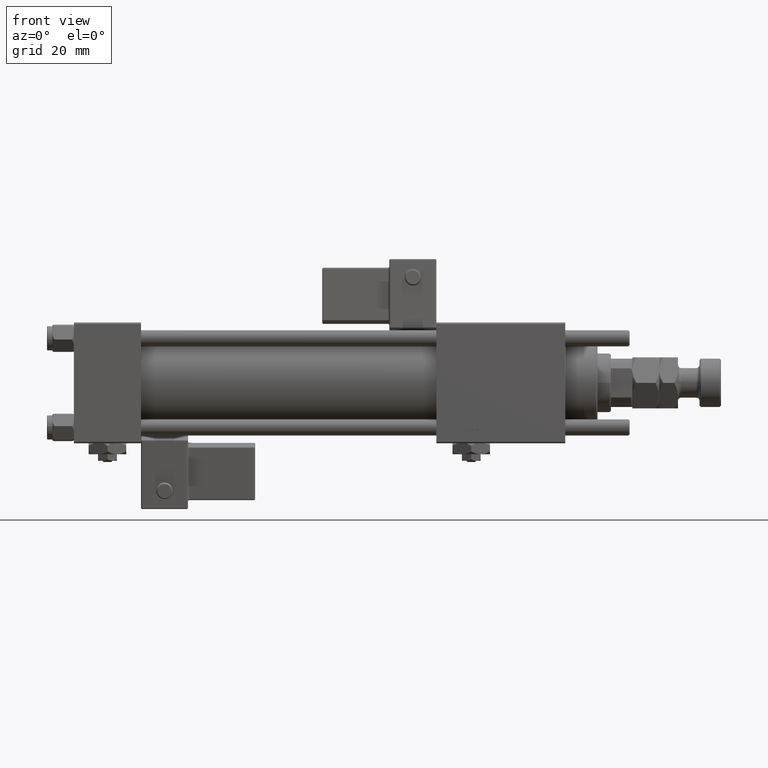
[diagram: clean part render]
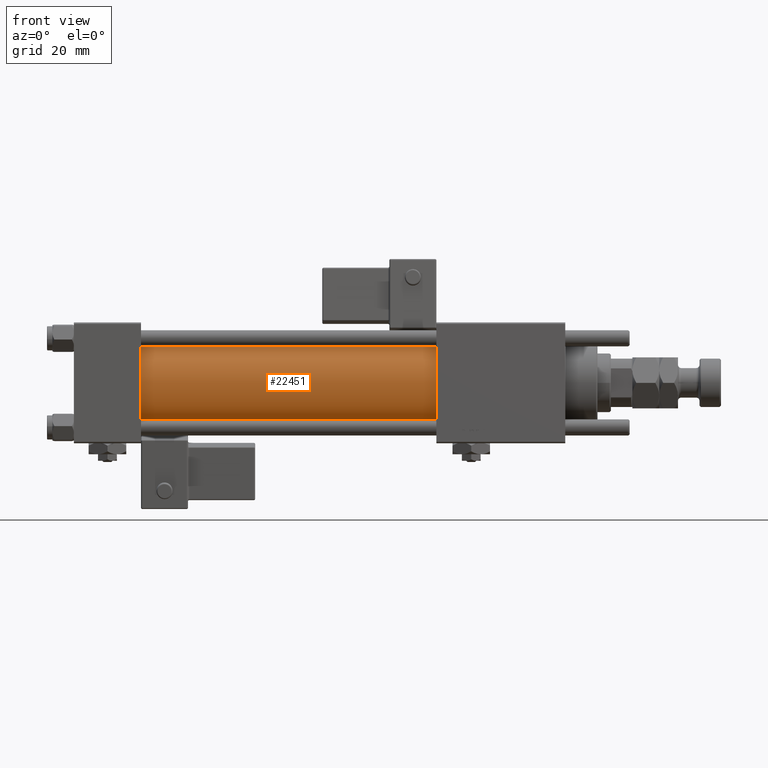
[diagram: same view with one face highlighted and labeled with its STEP entity id]
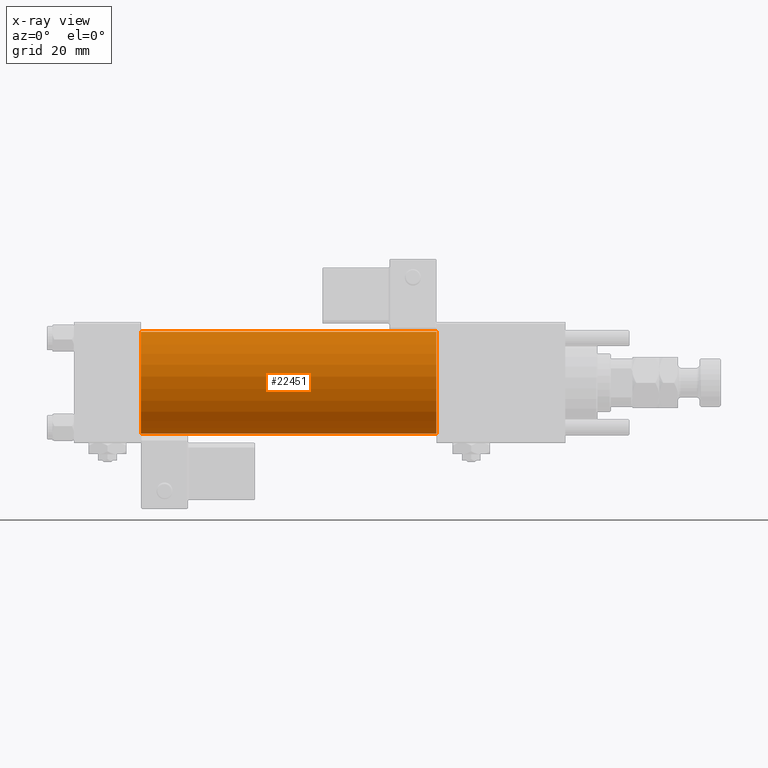
[diagram: x-ray of the same camera — body ghosted, the highlighted face saturated]
A machine part, front view. The second image highlights one B-rep face of the part: STEP entity #22451.
The next image is the same camera in x-ray: the body ghosted, the highlighted face saturated — about 0% of this face is hidden behind the body in this view.
In plain terms, the highlighted cylindrical surface (partial cylindrical patch) has radius 19 mm, axis along (-1, -0, -0).
Its self-contained STEP definition (entity closure, byte-faithful):
#97 = DIRECTION ( 'NONE',  ( 1.000000000000000000, 0.000000000000000000, 0.000000000000000000 ) ) ;
#469 = EDGE_CURVE ( 'NONE', #27811, #10264, #38032, .T. ) ;
#614 = DIRECTION ( 'NONE',  ( 1.000000000000000000, -0.000000000000000000, 0.000000000000000000 ) ) ;
#2034 = AXIS2_PLACEMENT_3D ( 'NONE', #30098, #614, #11365 ) ;
#3382 = DIRECTION ( 'NONE',  ( -1.000000000000000000, -0.000000000000000000, -0.000000000000000000 ) ) ;
#4564 = CIRCLE ( 'NONE', #9627, 19.00000000000000000 ) ;
#9627 = AXIS2_PLACEMENT_3D ( 'NONE', #28961, #97, #62626 ) ;
#10264 = VERTEX_POINT ( 'NONE', #56809 ) ;
#10929 = EDGE_CURVE ( 'NONE', #31914, #27811, #4564, .T. ) ;
#11201 = VECTOR ( 'NONE', #44781, 1000.000000000000000 ) ;
#11365 = DIRECTION ( 'NONE',  ( 0.000000000000000000, 0.000000000000000000, 1.000000000000000000 ) ) ;
#11974 = AXIS2_PLACEMENT_3D ( 'NONE', #36389, #3382, #55765 ) ;
#13137 = CIRCLE ( 'NONE', #2034, 19.00000000000000000 ) ;
#15390 = ORIENTED_EDGE ( 'NONE', *, *, #10929, .F. ) ;
#17383 = VECTOR ( 'NONE', #62484, 1000.000000000000000 ) ;
#22385 = ORIENTED_EDGE ( 'NONE', *, *, #26459, .T. ) ;
#22451 = ADVANCED_FACE ( 'NONE', ( #47160 ), #46849, .T. ) ;
#22574 = CARTESIAN_POINT ( 'NONE',  ( 24.99999999999999289, -2.602085213965210642E-15, 19.00000000000000000 ) ) ;
#24086 = CARTESIAN_POINT ( 'NONE',  ( 135.0000000000000000, -2.752562955852396712E-16, -19.00000000000000000 ) ) ;
#25201 = VERTEX_POINT ( 'NONE', #22574 ) ;
#26052 = CARTESIAN_POINT ( 'NONE',  ( 135.0000000000000000, -2.602085213965210642E-15, 19.00000000000000000 ) ) ;
#26459 = EDGE_CURVE ( 'NONE', #25201, #10264, #13137, .T. ) ;
#27613 = EDGE_CURVE ( 'NONE', #31914, #25201, #59086, .T. ) ;
#27811 = VERTEX_POINT ( 'NONE', #24086 ) ;
#28625 = CARTESIAN_POINT ( 'NONE',  ( 135.0000000000000000, -2.602085213965210642E-15, 19.00000000000000000 ) ) ;
#28961 = CARTESIAN_POINT ( 'NONE',  ( 135.0000000000000000, -2.602085213965210642E-15, 0.000000000000000000 ) ) ;
#30098 = CARTESIAN_POINT ( 'NONE',  ( 24.99999999999999289, -2.602085213965210642E-15, 0.000000000000000000 ) ) ;
#30748 = EDGE_LOOP ( 'NONE', ( #43325, #15390, #49018, #22385 ) ) ;
#31914 = VERTEX_POINT ( 'NONE', #28625 ) ;
#36389 = CARTESIAN_POINT ( 'NONE',  ( 135.0000000000000000, -2.602085213965210642E-15, 0.000000000000000000 ) ) ;
#38032 = LINE ( 'NONE', #38344, #17383 ) ;
#38344 = CARTESIAN_POINT ( 'NONE',  ( 135.0000000000000000, -2.752562955852396712E-16, -19.00000000000000000 ) ) ;
#43325 = ORIENTED_EDGE ( 'NONE', *, *, #469, .F. ) ;
#44781 = DIRECTION ( 'NONE',  ( -1.000000000000000000, -0.000000000000000000, -0.000000000000000000 ) ) ;
#46849 = CYLINDRICAL_SURFACE ( 'NONE', #11974, 19.00000000000000000 ) ;
#47160 = FACE_OUTER_BOUND ( 'NONE', #30748, .T. ) ;
#49018 = ORIENTED_EDGE ( 'NONE', *, *, #27613, .T. ) ;
#55765 = DIRECTION ( 'NONE',  ( 0.000000000000000000, 0.000000000000000000, 1.000000000000000000 ) ) ;
#56809 = CARTESIAN_POINT ( 'NONE',  ( 24.99999999999999289, -2.752562955852396712E-16, -19.00000000000000000 ) ) ;
#59086 = LINE ( 'NONE', #26052, #11201 ) ;
#62484 = DIRECTION ( 'NONE',  ( -1.000000000000000000, -0.000000000000000000, -0.000000000000000000 ) ) ;
#62626 = DIRECTION ( 'NONE',  ( 0.000000000000000000, 0.000000000000000000, -1.000000000000000000 ) ) ;